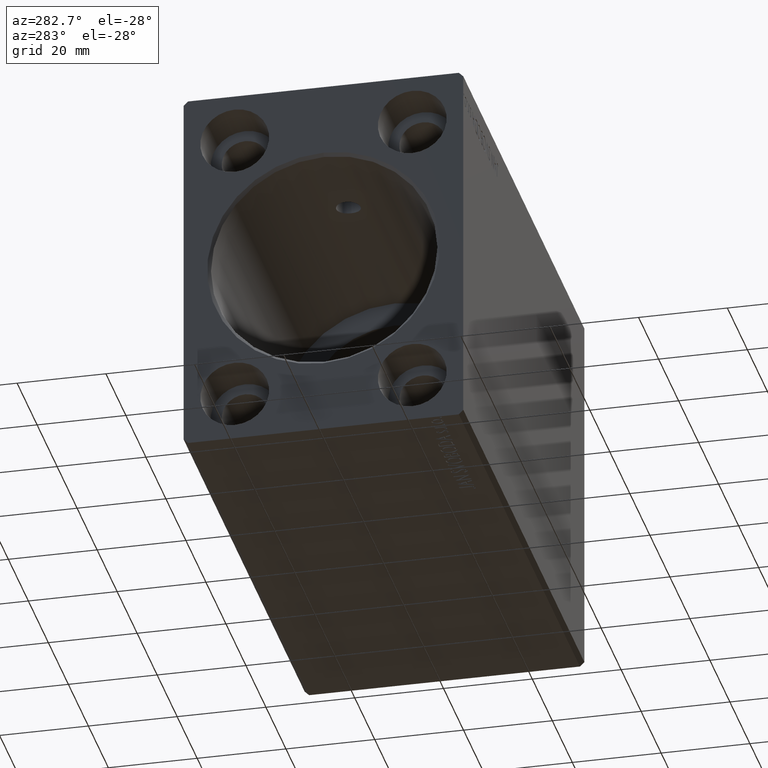
[diagram: clean part render]
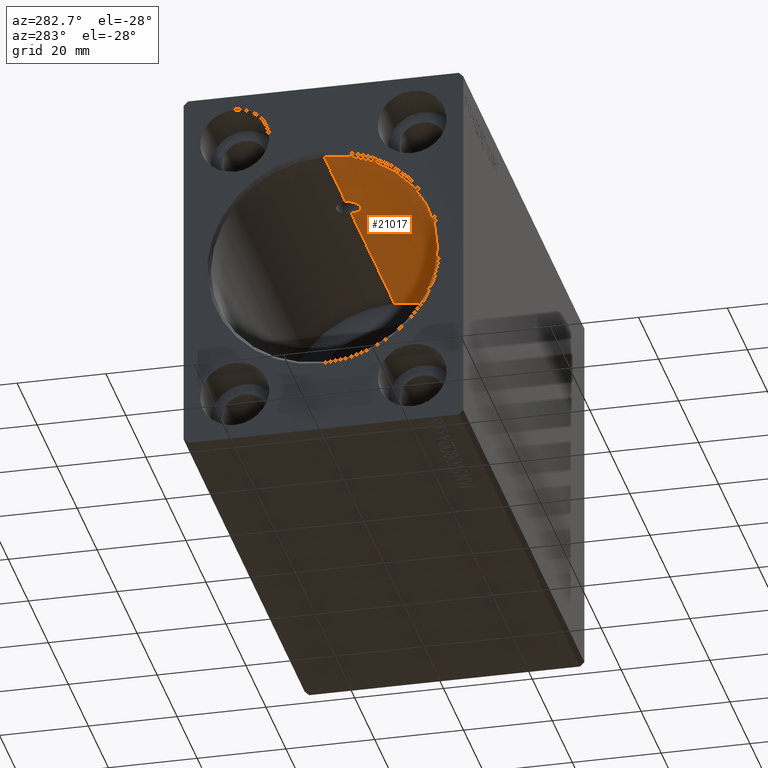
[diagram: same view with one face highlighted and labeled with its STEP entity id]
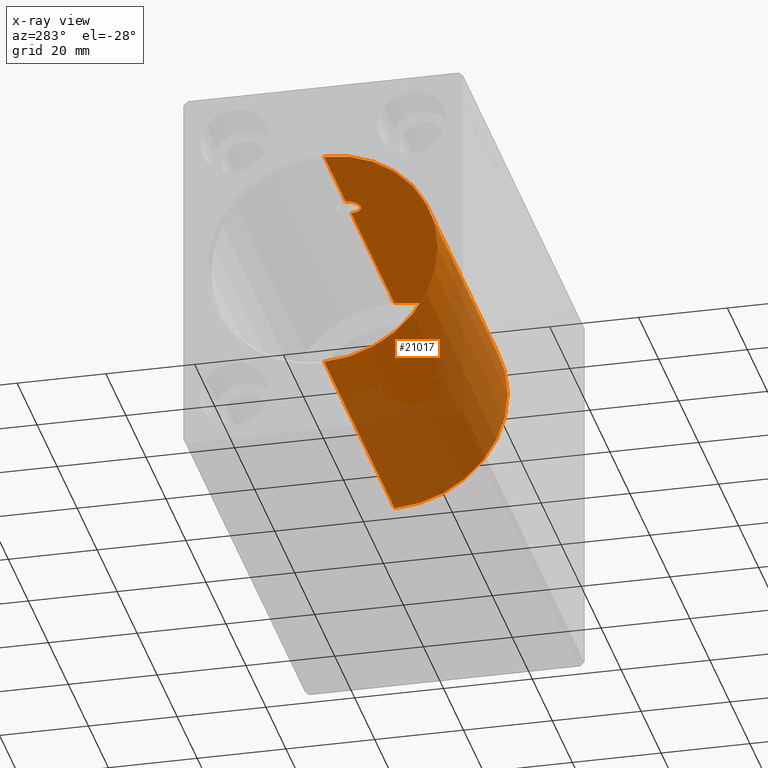
[diagram: x-ray of the same camera — body ghosted, the highlighted face saturated]
A machine part, auxiliary view. The second image highlights one B-rep face of the part: STEP entity #21017.
The next image is the same camera in x-ray: the body ghosted, the highlighted face saturated — about 52% of this face is hidden behind the body in this view.
In plain terms, the highlighted cylindrical surface (partial cylindrical patch) has radius 25.5 mm, axis along (-1, -0, -0).
Its self-contained STEP definition (entity closure, byte-faithful):
#274 = CARTESIAN_POINT ( 'NONE',  ( 71.00000000000000000, 0.000000000000000000, 0.000000000000000000 ) ) ;
#426 = CARTESIAN_POINT ( 'NONE',  ( 71.00000000000000000, 3.122849337825750222E-15, -25.50000000000000000 ) ) ;
#550 = EDGE_CURVE ( 'NONE', #24298, #4521, #14067, .T. ) ;
#1269 = ORIENTED_EDGE ( 'NONE', *, *, #35488, .T. ) ;
#3482 = CARTESIAN_POINT ( 'NONE',  ( 25.17965746997364462, -2.750135842261436814, 25.35126728327389500 ) ) ;
#3696 = DIRECTION ( 'NONE',  ( 0.000000000000000000, 0.000000000000000000, 1.000000000000000000 ) ) ;
#3892 = CARTESIAN_POINT ( 'NONE',  ( 25.88490523975780633, -2.609967974704298754, 25.36617559983470116 ) ) ;
#4106 = CARTESIAN_POINT ( 'NONE',  ( 23.62072793168309914, -2.385868828629940541, 25.38833744939063308 ) ) ;
#4318 = CARTESIAN_POINT ( 'NONE',  ( 22.92747369340838404, -1.816387342815114270, 25.43554436236965799 ) ) ;
#4473 = DIRECTION ( 'NONE',  ( -1.000000000000000000, -0.000000000000000000, -0.000000000000000000 ) ) ;
#4521 = VERTEX_POINT ( 'NONE', #13547 ) ;
#5399 = CARTESIAN_POINT ( 'NONE',  ( 71.00000000000000000, 3.122849337825750222E-15, -25.50000000000000000 ) ) ;
#5418 = VERTEX_POINT ( 'NONE', #6089 ) ;
#6089 = CARTESIAN_POINT ( 'NONE',  ( 0.7000000000000200506, 0.000000000000000000, 25.50000000000000000 ) ) ;
#8816 = CIRCLE ( 'NONE', #16335, 25.50000000000000000 ) ;
#9433 = VECTOR ( 'NONE', #32883, 1000.000000000000000 ) ;
#9908 = CARTESIAN_POINT ( 'NONE',  ( 27.67682030176549191, -0.7248319856846169307, 25.49184498653623976 ) ) ;
#10161 = CARTESIAN_POINT ( 'NONE',  ( 71.00000000000000000, 0.000000000000000000, 25.50000000000000000 ) ) ;
#10324 = DIRECTION ( 'NONE',  ( -1.000000000000000000, 0.000000000000000000, 0.000000000000000000 ) ) ;
#10330 = CARTESIAN_POINT ( 'NONE',  ( 27.38512163366777585, -1.380710113163329034, 25.46303721338550119 ) ) ;
#10536 = CARTESIAN_POINT ( 'NONE',  ( 23.32210608210777636, -2.186191552944861893, 25.40631053508933235 ) ) ;
#11118 = LINE ( 'NONE', #426, #27113 ) ;
#11230 = VERTEX_POINT ( 'NONE', #23919 ) ;
#12488 = CARTESIAN_POINT ( 'NONE',  ( 22.39064526492735396, -0.8864790600330544335, 25.48512477833793355 ) ) ;
#12914 = FACE_OUTER_BOUND ( 'NONE', #26976, .T. ) ;
#13120 = CARTESIAN_POINT ( 'NONE',  ( 25.71022768475523534, -2.662743543257620527, 25.36061954640743110 ) ) ;
#13319 = CARTESIAN_POINT ( 'NONE',  ( 27.18389920559832973, -1.680996693562630151, 25.44497739560948446 ) ) ;
#13526 = CARTESIAN_POINT ( 'NONE',  ( 24.28599766523874592, -2.661733320571021633, 25.36072594039587003 ) ) ;
#13547 = CARTESIAN_POINT ( 'NONE',  ( 71.00000000000000000, 0.000000000000000000, 25.50000000000000000 ) ) ;
#13584 = VECTOR ( 'NONE', #20831, 1000.000000000000000 ) ;
#13980 = LINE ( 'NONE', #10161, #9433 ) ;
#14067 = CIRCLE ( 'NONE', #34612, 25.50000000000000000 ) ;
#15471 = CARTESIAN_POINT ( 'NONE',  ( 22.25000000000000355, -2.520173933909566415E-23, 25.50000000000000000 ) ) ;
#16141 = CARTESIAN_POINT ( 'NONE',  ( 27.75000000000000000, -1.939261765858355171E-16, 25.50000000000000000 ) ) ;
#16335 = AXIS2_PLACEMENT_3D ( 'NONE', #29531, #37017, #24358 ) ;
#16662 = EDGE_CURVE ( 'NONE', #24298, #20185, #11118, .T. ) ;
#16832 = CARTESIAN_POINT ( 'NONE',  ( 0.7000000000000200506, 3.122849337825750222E-15, -25.50000000000000000 ) ) ;
#16955 = CARTESIAN_POINT ( 'NONE',  ( 24.11130413776087167, -2.608674622914100016, 25.36630921588758980 ) ) ;
#17290 = ORIENTED_EDGE ( 'NONE', *, *, #16662, .T. ) ;
#17367 = CARTESIAN_POINT ( 'NONE',  ( 27.75000000000000000, -0.3635965196299786317, 25.50000000000000000 ) ) ;
#18693 = CARTESIAN_POINT ( 'NONE',  ( 22.26740540768867405, -0.3579947414668462891, 25.49810475491917217 ) ) ;
#20168 = CARTESIAN_POINT ( 'NONE',  ( 27.47063823671255989, -1.220863951121378577, 25.47129515295832647 ) ) ;
#20185 = VERTEX_POINT ( 'NONE', #16832 ) ;
#20831 = DIRECTION ( 'NONE',  ( -1.000000000000000000, -0.000000000000000000, -0.000000000000000000 ) ) ;
#21017 = ADVANCED_FACE ( 'NONE', ( #12914 ), #33054, .F. ) ;
#22977 = CARTESIAN_POINT ( 'NONE',  ( 22.81377877897357465, -1.677978686999036517, 25.44517755690342042 ) ) ;
#23193 = CARTESIAN_POINT ( 'NONE',  ( 23.18078963046836449, -2.070048768034655762, 25.41615781520040329 ) ) ;
#23406 = CARTESIAN_POINT ( 'NONE',  ( 26.67488835613263376, -2.188496193278211877, 25.40611133594926585 ) ) ;
#23513 = ORIENTED_EDGE ( 'NONE', *, *, #29951, .T. ) ;
#23607 = CARTESIAN_POINT ( 'NONE',  ( 27.07002405731614303, -1.819238265118418907, 25.43533973673181237 ) ) ;
#23919 = CARTESIAN_POINT ( 'NONE',  ( 22.25000000000000355, -2.520173933909566415E-23, 25.50000000000000000 ) ) ;
#24298 = VERTEX_POINT ( 'NONE', #5399 ) ;
#24358 = DIRECTION ( 'NONE',  ( 0.000000000000000000, 0.000000000000000000, -1.000000000000000000 ) ) ;
#25888 = EDGE_CURVE ( 'NONE', #11230, #5418, #13980, .T. ) ;
#26553 = AXIS2_PLACEMENT_3D ( 'NONE', #274, #35853, #3696 ) ;
#26627 = CARTESIAN_POINT ( 'NONE',  ( 24.63752592508093642, -2.731892411661582809, 25.35326425422990226 ) ) ;
#26976 = EDGE_LOOP ( 'NONE', ( #38430, #17290, #23513, #38757, #1269, #40425 ) ) ;
#27027 = CARTESIAN_POINT ( 'NONE',  ( 23.77852811768099883, -2.470419005857315220, 25.38014689594522721 ) ) ;
#27065 = CARTESIAN_POINT ( 'NONE',  ( 71.00000000000000000, 0.000000000000000000, 25.50000000000000000 ) ) ;
#27113 = VECTOR ( 'NONE', #4473, 1000.000000000000000 ) ;
#27807 = EDGE_CURVE ( 'NONE', #4521, #31953, #40126, .T. ) ;
#29531 = CARTESIAN_POINT ( 'NONE',  ( 0.7000000000000200506, 0.000000000000000000, 0.000000000000000000 ) ) ;
#29626 = CARTESIAN_POINT ( 'NONE',  ( 27.75000000000000000, -1.939261765858355171E-16, 25.50000000000000000 ) ) ;
#29951 = EDGE_CURVE ( 'NONE', #20185, #5418, #8816, .T. ) ;
#31781 = CARTESIAN_POINT ( 'NONE',  ( 22.33786121215855758, -0.7129169061798945606, 25.49065036072309454 ) ) ;
#31953 = VERTEX_POINT ( 'NONE', #16141 ) ;
#32883 = DIRECTION ( 'NONE',  ( -1.000000000000000000, -0.000000000000000000, -0.000000000000000000 ) ) ;
#33045 = CARTESIAN_POINT ( 'NONE',  ( 24.81620767292593044, -2.749862603461680877, 25.35129692305637406 ) ) ;
#33054 = CYLINDRICAL_SURFACE ( 'NONE', #26553, 25.50000000000000000 ) ;
#33469 = CARTESIAN_POINT ( 'NONE',  ( 22.61294351403970637, -1.377365976828306859, 25.46321928472989882 ) ) ;
#34612 = AXIS2_PLACEMENT_3D ( 'NONE', #36463, #10324, #38831 ) ;
#35488 = EDGE_CURVE ( 'NONE', #11230, #31953, #36722, .T. ) ;
#35853 = DIRECTION ( 'NONE',  ( -1.000000000000000000, -0.000000000000000000, -0.000000000000000000 ) ) ;
#36052 = CARTESIAN_POINT ( 'NONE',  ( 26.21801398730341859, -2.472131072387975692, 25.37997961684692783 ) ) ;
#36263 = CARTESIAN_POINT ( 'NONE',  ( 25.35858401653127103, -2.732406273679161224, 25.35320853285322684 ) ) ;
#36463 = CARTESIAN_POINT ( 'NONE',  ( 71.00000000000000000, 0.000000000000000000, 0.000000000000000000 ) ) ;
#36722 = B_SPLINE_CURVE_WITH_KNOTS ( 'NONE', 3,
 ( #15471, #41849, #18693, #31781, #12488, #41635, #33469, #22977, #4318, #23193, #10536, #4106, #27027, #16955, #13526, #26627, #33045, #3482, #36263, #13120, #3892, #36052, #39888, #23406, #36890, #23607, #13319, #10330, #20168, #9908, #17367, #29626 ),
 .UNSPECIFIED., .F., .F.,
 ( 4, 2, 2, 2, 2, 2, 2, 2, 2, 2, 2, 2, 2, 2, 2, 4 ),
 ( 0.008604006645664711780, 0.009141630171927152618, 0.009679253698189595190, 0.01021687722445203603, 0.01075450075071447686, 0.01129212427697691770, 0.01182974780323936027, 0.01236737132950180111, 0.01290499485576424195, 0.01344261838202668279, 0.01398024190828912536, 0.01451786543455156619, 0.01505548896081400703, 0.01559311248707644787, 0.01613073601333888871, 0.01720598306586377038 ),
 .UNSPECIFIED. ) ;
#36890 = CARTESIAN_POINT ( 'NONE',  ( 26.81636260107540082, -2.072547795481031851, 25.41595327788605019 ) ) ;
#37017 = DIRECTION ( 'NONE',  ( -1.000000000000000000, 0.000000000000000000, 0.000000000000000000 ) ) ;
#38430 = ORIENTED_EDGE ( 'NONE', *, *, #550, .F. ) ;
#38757 = ORIENTED_EDGE ( 'NONE', *, *, #25888, .F. ) ;
#38831 = DIRECTION ( 'NONE',  ( 0.000000000000000000, 0.000000000000000000, 1.000000000000000000 ) ) ;
#39888 = CARTESIAN_POINT ( 'NONE',  ( 26.37596777815029370, -2.387777055546445482, 25.38815726939725792 ) ) ;
#40126 = LINE ( 'NONE', #27065, #13584 ) ;
#40425 = ORIENTED_EDGE ( 'NONE', *, *, #27807, .F. ) ;
#41635 = CARTESIAN_POINT ( 'NONE',  ( 22.52766858276410034, -1.217437727635974909, 25.47146001843356800 ) ) ;
#41849 = CARTESIAN_POINT ( 'NONE',  ( 22.25000000000000711, -0.1795016314704371840, 25.50000000000000355 ) ) ;